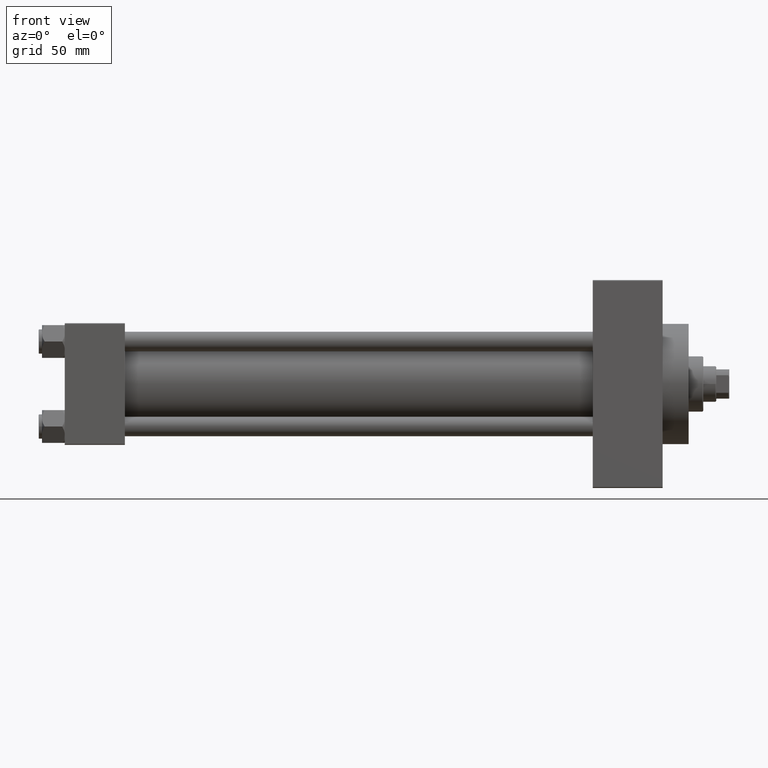
[diagram: clean part render]
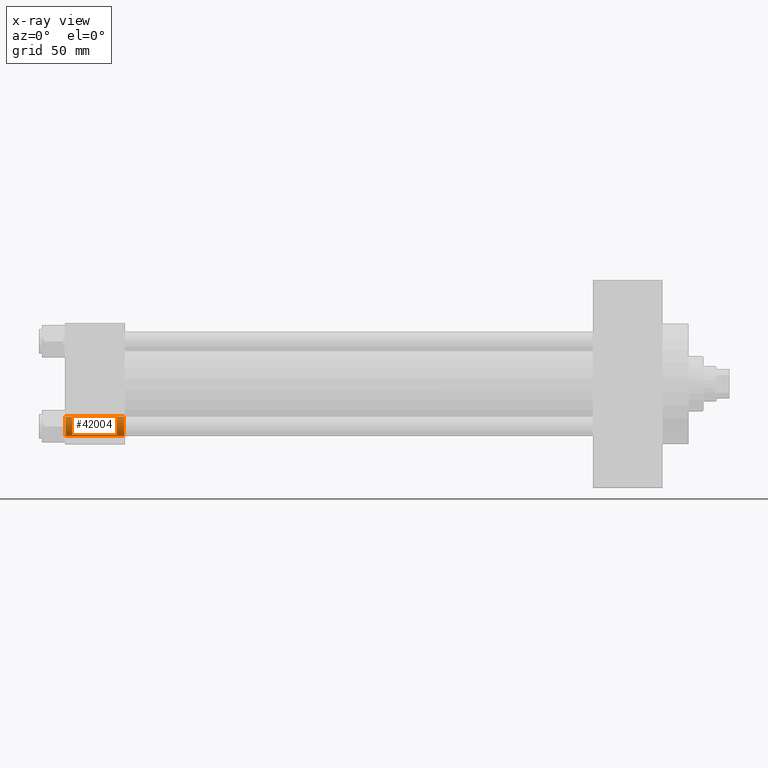
[diagram: x-ray — body ghosted, one internal face saturated and labeled with its STEP entity id]
A machine part, front view, then the same camera in x-ray: the body is ghosted and one INTERNAL B-rep face — a face not visible from any outside direction — is saturated and labeled: STEP entity #42004.
In plain terms, the highlighted cylindrical surface (edge-blend (fillet) strip) has radius 6 mm, axis along (-1, -0, -0).
Its self-contained STEP definition (entity closure, byte-faithful):
#267 = CARTESIAN_POINT ( 'NONE',  ( 36.50000000000000711, 26.14999999999999858, -20.15000000000000213 ) ) ;
#2169 = DIRECTION ( 'NONE',  ( -1.000000000000000000, -0.000000000000000000, -0.000000000000000000 ) ) ;
#3317 = DIRECTION ( 'NONE',  ( 0.000000000000000000, 0.000000000000000000, 1.000000000000000000 ) ) ;
#4440 = DIRECTION ( 'NONE',  ( -1.000000000000000000, -0.000000000000000000, -0.000000000000000000 ) ) ;
#5288 = LINE ( 'NONE', #13415, #18936 ) ;
#5600 = FACE_OUTER_BOUND ( 'NONE', #41177, .T. ) ;
#5745 = CIRCLE ( 'NONE', #31805, 6.000000000000001776 ) ;
#7387 = ORIENTED_EDGE ( 'NONE', *, *, #26517, .F. ) ;
#8415 = ORIENTED_EDGE ( 'NONE', *, *, #16357, .T. ) ;
#9550 = CARTESIAN_POINT ( 'NONE',  ( 0.5000000000000213163, 26.14999999999999858, -20.15000000000000213 ) ) ;
#10114 = VERTEX_POINT ( 'NONE', #9550 ) ;
#10245 = EDGE_CURVE ( 'NONE', #46841, #10114, #27624, .T. ) ;
#13415 = CARTESIAN_POINT ( 'NONE',  ( 37.00000000000000711, 26.14999999999999858, -32.15000000000000568 ) ) ;
#15661 = CARTESIAN_POINT ( 'NONE',  ( 37.00000000000000711, 26.14999999999999858, -26.15000000000000213 ) ) ;
#16357 = EDGE_CURVE ( 'NONE', #23929, #44840, #5745, .T. ) ;
#16594 = DIRECTION ( 'NONE',  ( -1.000000000000000000, -0.000000000000000000, -0.000000000000000000 ) ) ;
#18936 = VECTOR ( 'NONE', #2169, 1000.000000000000000 ) ;
#19283 = LINE ( 'NONE', #30804, #46527 ) ;
#23157 = AXIS2_PLACEMENT_3D ( 'NONE', #15661, #16594, #37744 ) ;
#23706 = CARTESIAN_POINT ( 'NONE',  ( 36.50000000000000711, 26.14999999999999858, -32.15000000000000568 ) ) ;
#23929 = VERTEX_POINT ( 'NONE', #267 ) ;
#25122 = DIRECTION ( 'NONE',  ( -1.000000000000000000, 0.000000000000000000, 0.000000000000000000 ) ) ;
#26517 = EDGE_CURVE ( 'NONE', #23929, #10114, #19283, .T. ) ;
#27624 = CIRCLE ( 'NONE', #33005, 6.000000000000001776 ) ;
#28023 = EDGE_CURVE ( 'NONE', #44840, #46841, #5288, .T. ) ;
#29257 = ORIENTED_EDGE ( 'NONE', *, *, #28023, .T. ) ;
#30804 = CARTESIAN_POINT ( 'NONE',  ( 37.00000000000000711, 26.14999999999999858, -20.15000000000000213 ) ) ;
#31805 = AXIS2_PLACEMENT_3D ( 'NONE', #41631, #33487, #41393 ) ;
#32784 = CARTESIAN_POINT ( 'NONE',  ( 0.5000000000000213163, 26.14999999999999858, -26.15000000000000213 ) ) ;
#33005 = AXIS2_PLACEMENT_3D ( 'NONE', #32784, #25122, #3317 ) ;
#33487 = DIRECTION ( 'NONE',  ( 1.000000000000000000, -0.000000000000000000, -0.000000000000000000 ) ) ;
#33530 = CARTESIAN_POINT ( 'NONE',  ( 0.5000000000000213163, 26.14999999999999858, -32.15000000000000568 ) ) ;
#34367 = CYLINDRICAL_SURFACE ( 'NONE', #23157, 6.000000000000001776 ) ;
#37744 = DIRECTION ( 'NONE',  ( 0.000000000000000000, 0.000000000000000000, 1.000000000000000000 ) ) ;
#41177 = EDGE_LOOP ( 'NONE', ( #8415, #29257, #47072, #7387 ) ) ;
#41393 = DIRECTION ( 'NONE',  ( 0.000000000000000000, 0.000000000000000000, 1.000000000000000000 ) ) ;
#41631 = CARTESIAN_POINT ( 'NONE',  ( 36.50000000000000711, 26.14999999999999858, -26.15000000000000213 ) ) ;
#42004 = ADVANCED_FACE ( 'NONE', ( #5600 ), #34367, .F. ) ;
#44840 = VERTEX_POINT ( 'NONE', #23706 ) ;
#46527 = VECTOR ( 'NONE', #4440, 1000.000000000000000 ) ;
#46841 = VERTEX_POINT ( 'NONE', #33530 ) ;
#47072 = ORIENTED_EDGE ( 'NONE', *, *, #10245, .T. ) ;